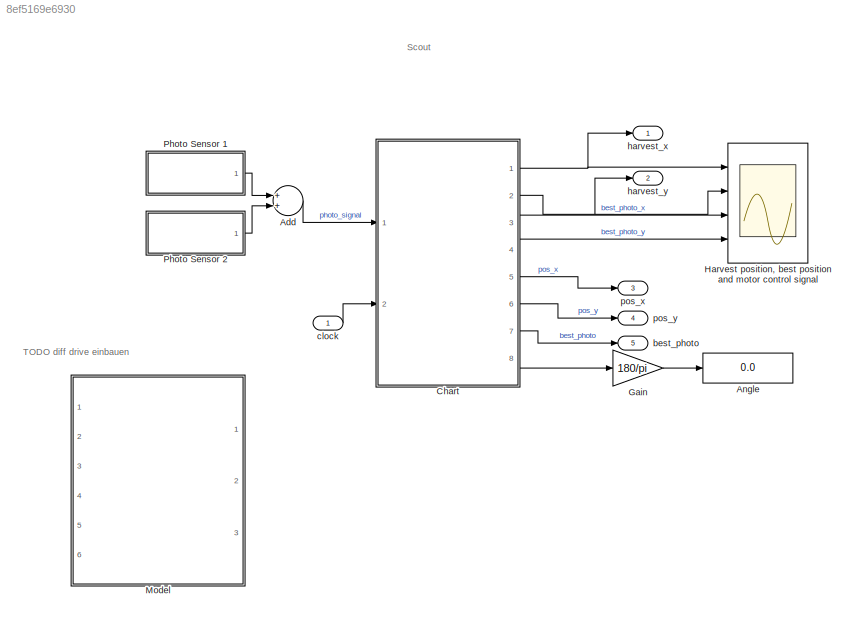
MODEL slx_8ef5169e6930
KIND model
CONFIG AbsTol = auto
CONFIG EnableMultiTasking = off
CONFIG FixedStep = 0.01
CONFIG MaxStep = auto
CONFIG MinStep = auto
CONFIG RelTol = 1e-3
CONFIG SampleTimeConstraint = Unconstrained
CONFIG Solver = VariableStepAuto
CONFIG SolverName = VariableStepAuto
CONFIG StartTime = 0.0
CONFIG StopTime = 20
BLOCK [Sum] Add
  InputSameDT = off
  OutDataTypeStr = Inherit: Inherit via internal rule
  Ports = [2, 1]
  SaturateOnIntegerOverflow = off
BLOCK [Display] Angle
  Decimation = 1
  Ports = [1]
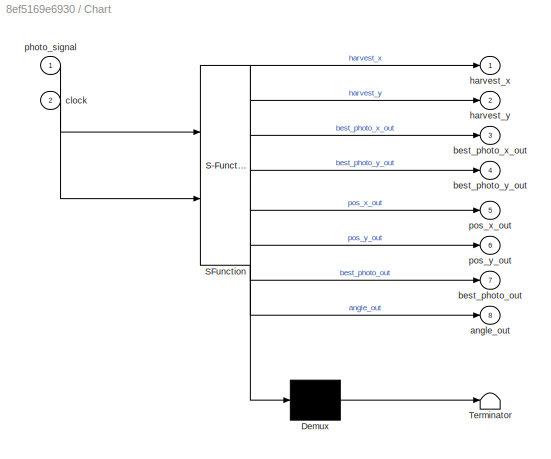
BLOCK [SubSystem] Chart
  ErrorFcn = Stateflow.Translate.translate
  PermitHierarchicalResolution = ExplicitOnly
  Ports = [2, 8]
  RequestExecContextInheritance = off
  SFBlockType = Chart
  TreatAsAtomicUnit = on
BLOCK [Demux] Chart/ Demux 
  Outputs = 1
  Ports = [1, 1]
BLOCK [S-Function] Chart/ SFunction 
  EnableBusSupport = on
  FunctionName = sf_sfun
  PortCounts = [2 9]
  Ports = [2, 9]
  SFcnIsStateOwnerBlock = off
  SFunctionDeploymentMode = off
  Tag = Stateflow S-Function scout 3
BLOCK [Terminator] Chart/ Terminator 
BLOCK [Outport] Chart/angle_out
  IconDisplay = Port number
  Port = 8
BLOCK [Outport] Chart/best_photo_out
  IconDisplay = Port number
  Port = 7
BLOCK [Outport] Chart/best_photo_x_out
  IconDisplay = Port number
  Port = 3
BLOCK [Outport] Chart/best_photo_y_out
  IconDisplay = Port number
  Port = 4
BLOCK [Inport] Chart/clock
  IconDisplay = Port number
  Port = 2
BLOCK [Outport] Chart/harvest_x
  IconDisplay = Port number
BLOCK [Outport] Chart/harvest_y
  IconDisplay = Port number
  Port = 2
BLOCK [Inport] Chart/photo_signal
  IconDisplay = Port number
BLOCK [Outport] Chart/pos_x_out
  IconDisplay = Port number
  Port = 5
BLOCK [Outport] Chart/pos_y_out
  IconDisplay = Port number
  Port = 6
BLOCK [Gain] Gain
  Gain = 180/pi
  OutDataTypeStr = Inherit: Inherit via internal rule
  ParamDataTypeStr = Inherit: Inherit via internal rule
  SaturateOnIntegerOverflow = off
BLOCK [Scope] Harvest position, best position and motor control signal
  Floating = off
  NumInputPorts = 4
  Ports = [4]
  ScopeSpecificationString = Simulink.scopes.TimeScopeBlockCfg('CurrentConfiguration', extmgr.ConfigurationSet(extmgr.Configuration('Core','General UI',true),extmgr.Configuration('Core','Source UI',true),extmgr.Configuration('Sources','WiredSimulink',true),extmgr.Configuration('Visuals','Time Domain',true,'SerializedDisplays',{struct('MinYLimReal','-3.125','MaxYLimReal','18.125','YLabelReal','','MinYLimMag','0.00000','MaxYLim...<+1392ch>
BLOCK [ModelReference] Model
  ModelNameDialog = differential_drive.slx
  ModelReferenceVersion = 1.286
  Ports = [6, 3]
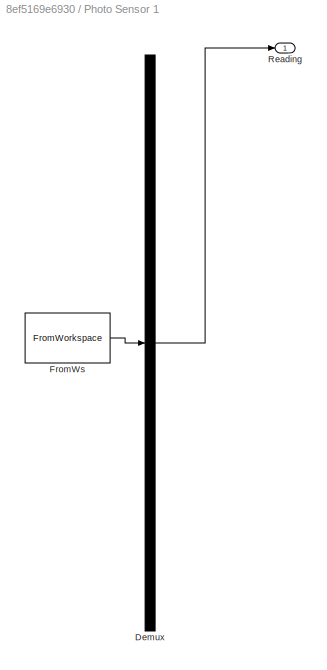
BLOCK [SubSystem] Photo Sensor 1
  ClipboardFcn = sigbuilder_block('clipboard');
  CloseFcn = sigbuilder_block('close');
  ContinueFcn = sigbuilder_block('continue');
  CopyFcn = sigbuilder_block('copy');
  DeleteFcn = sigbuilder_block('delete');
  LoadFcn = sigbuilder_block('load');
  MaskHideContents = on
  ModelCloseFcn = sigbuilder_block('modelClose');
  NameChangeFcn = sigbuilder_block('namechange');
  OpenFcn = sigbuilder_block('open',[5.4 30 1141.2 522.6 ]);
  PauseFcn = sigbuilder_block('pause');
  Ports = [0, 1]
  PreSaveFcn = sigbuilder_block('preSave');
  RequestExecContextInheritance = off
  StartFcn = sigbuilder_block('start');
  StopFcn = sigbuilder_block('stop');
  Tag = STV Subsys
BLOCK [Demux] Photo Sensor 1/Demux
  Outputs = 1
  Ports = [1, 1]
  Tag = STV Demux
BLOCK [FromWorkspace] Photo Sensor 1/FromWs
  SampleTime = 0
  Tag = STV FromWs
  VariableName = tuvar
  ZeroCross = on
BLOCK [Outport] Photo Sensor 1/Reading
  IconDisplay = Port number
  Tag = STV Outport
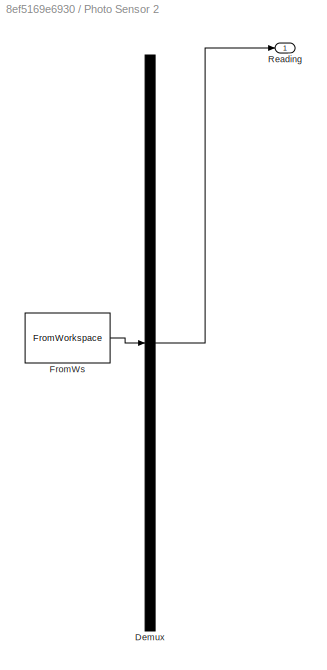
BLOCK [SubSystem] Photo Sensor 2
  ClipboardFcn = sigbuilder_block('clipboard');
  CloseFcn = sigbuilder_block('close');
  ContinueFcn = sigbuilder_block('continue');
  CopyFcn = sigbuilder_block('copy');
  DeleteFcn = sigbuilder_block('delete');
  LoadFcn = sigbuilder_block('load');
  MaskHideContents = on
  ModelCloseFcn = sigbuilder_block('modelClose');
  NameChangeFcn = sigbuilder_block('namechange');
  OpenFcn = sigbuilder_block('open',[5.4 30 1141.2 522.6 ]);
  PauseFcn = sigbuilder_block('pause');
  Ports = [0, 1]
  PreSaveFcn = sigbuilder_block('preSave');
  RequestExecContextInheritance = off
  StartFcn = sigbuilder_block('start');
  StopFcn = sigbuilder_block('stop');
  Tag = STV Subsys
BLOCK [Demux] Photo Sensor 2/Demux
  Outputs = 1
  Ports = [1, 1]
  Tag = STV Demux
BLOCK [FromWorkspace] Photo Sensor 2/FromWs
  SampleTime = 0
  Tag = STV FromWs
  VariableName = tuvar
  ZeroCross = on
BLOCK [Outport] Photo Sensor 2/Reading
  IconDisplay = Port number
  Tag = STV Outport
BLOCK [Outport] best_photo
  IconDisplay = Port number
  OutDataTypeStr = double
  Port = 5
  PortDimensions = 1
  SampleTime = 0
  SamplingMode = Sample based
  SignalType = real
BLOCK [Inport] clock
  IconDisplay = Port number
  OutDataTypeStr = double
  PortDimensions = 1
  SampleTime = 0
  SamplingMode = Sample based
  SignalType = real
BLOCK [Outport] harvest_x
  IconDisplay = Port number
  OutDataTypeStr = double
  PortDimensions = 1
  SampleTime = 0
  SamplingMode = Sample based
  SignalType = real
BLOCK [Outport] harvest_y
  IconDisplay = Port number
  OutDataTypeStr = double
  Port = 2
  PortDimensions = 1
  SampleTime = 0
  SamplingMode = Sample based
  SignalType = real
BLOCK [Outport] pos_x
  IconDisplay = Port number
  OutDataTypeStr = double
  Port = 3
  PortDimensions = 1
  SampleTime = 0
  SamplingMode = Sample based
  SignalType = real
BLOCK [Outport] pos_y
  IconDisplay = Port number
  OutDataTypeStr = double
  Port = 4
  PortDimensions = 1
  SampleTime = 0
  SamplingMode = Sample based
  SignalType = real
ANNOTATION (root): TODO diff drive einbauen
ANNOTATION (root): Scout
LINE Add:1 -> Chart:1
NET Chart:1 -> Harvest position, best position and motor control signal:1, harvest_x:1
NET Chart:2 -> Harvest position, best position and motor control signal:2, harvest_y:1
LINE Chart:3 -> Harvest position, best position and motor control signal:3
LINE Chart:4 -> Harvest position, best position and motor control signal:4
LINE Chart:5 -> pos_x:1
LINE Chart:6 -> pos_y:1
LINE Chart:7 -> best_photo:1
LINE Chart:8 -> Gain:1
LINE Gain:1 -> Angle:1
LINE Photo Sensor 1:1 -> Add:1
LINE Photo Sensor 2:1 -> Add:2
LINE clock:1 -> Chart:2
note: NET lines group one-source signal fan-out (src -> all destinations, sorted); 1:1 wires keep LINE
CHART Chart states=11 transitions=12
  STATE_LABEL 'Drive'
  STATE_LABEL 'Move\ndu:\npos_x_dot = (r / 2) * (ul + ur) * cos(angle);\npos_y_dot = (r / 2) * (ul + ur) * sin(angle);\nangle_dot = (r / L) * (ur - ul);\npos_x_out = pos_x;\npos_y_out = pos_y;\nangle_out = angle;\n'
  STATE_LABEL '<!DOCTYPE HTML PUBLIC "-//W3C//DTD HTML 4.0//EN" "http://www.w3.org/TR/REC-html40/strict.dtd">\n<html><head><meta name="qrichtext" content="1" /><style type="text/css">\np, li { white-space: pre-wrap; }\n</style></head><body style=" font-family:\'Helvetica\'; font-size:12px; font-weight:400; font-style:normal;">\n<p style=" margin-top:0px; margin-bottom:0px; margin-left:0px; margin-right:0px; -qt-block-...<+208ch>'
  STATE_LABEL '{\npos_x = 0;\npos_y = 0;\nul = 1;\nur = 1;\nangle = 0;\nturn = 0;\n}'
  STATE_LABEL '[false]\n{ul = 1; ur = -1; turn == 2;}'
  STATE_LABEL '[angle * 180/pi == 0 && turn == 0]\n{ul = -1; ur = 1; turn = 1;}'
  STATE_LABEL '[angle * 180/pi  >= 25 && turn > 0]\n{ul = 1; ur = 1; turn = 0}'
  STATE_LABEL 'Move\ndu:\npos_x_dot = (r / 2) * (ul + ur) * cos(angle);\npos_y_dot = (r / 2) * (ul + ur) * sin(angle);\nangle_dot = (r / L) * (ur - ul);\npos_x_out = pos_x;\npos_y_out = pos_y;\nangle_out = angle;\n'
  STATE_LABEL '<!DOCTYPE HTML PUBLIC "-//W3C//DTD HTML 4.0//EN" "http://www.w3.org/TR/REC-html40/strict.dtd">\n<html><head><meta name="qrichtext" content="1" /><style type="text/css">\np, li { white-space: pre-wrap; }\n</style></head><body style=" font-family:\'Helvetica\'; font-size:12px; font-weight:400; font-style:normal;">\n<p style=" margin-top:0px; margin-bottom:0px; margin-left:0px; margin-right:0px; -qt-block-...<+208ch>'
  STATE_LABEL 'Sense'
  STATE_LABEL 'Dark\n'
  STATE_LABEL 'Light\nen, du:\nharvest_x = pos_x;\nharvest_y = pos_y;'
  STATE_LABEL '<!DOCTYPE HTML PUBLIC "-//W3C//DTD HTML 4.0//EN" "http://www.w3.org/TR/REC-html40/strict.dtd">\n<html><head><meta name="qrichtext" content="1" /><style type="text/css">\np, li { white-space: pre-wrap; }\n</style></head><body style=" font-family:\'Helvetica\'; font-size:12px; font-weight:400; font-style:normal;">\n<p style=" margin-top:0px; margin-bottom:0px; margin-left:0px; margin-right:0px; -qt-block-...<+130ch>'
  STATE_LABEL '{\nbest_photo = -1;\nbest_photo_x = -1;\nbest_photo_y = -1;\n}'
  STATE_LABEL '[photo_signal > 200]'
  STATE_LABEL '[photo_signal > best_photo]\n{best_photo = photo_signal;\nbest_photo_x = pos_x;\nbest_photo_y = pos_y;}'
  STATE_LABEL '[photo_signal <= 200]'
  STATE_LABEL '[photo_signal > best_photo]\n{best_photo = photo_signal;\nbest_photo_x = pos_x;\nbest_photo_y = pos_y;}'
  STATE_LABEL 'Dark\n'
  STATE_LABEL 'Light\nen, du:\nharvest_x = pos_x;\nharvest_y = pos_y;'
  STATE_LABEL '<!DOCTYPE HTML PUBLIC "-//W3C//DTD HTML 4.0//EN" "http://www.w3.org/TR/REC-html40/strict.dtd">\n<html><head><meta name="qrichtext" content="1" /><style type="text/css">\np, li { white-space: pre-wrap; }\n</style></head><body style=" font-family:\'Helvetica\'; font-size:12px; font-weight:400; font-style:normal;">\n<p style=" margin-top:0px; margin-bottom:0px; margin-left:0px; margin-right:0px; -qt-block-...<+130ch>'
  STATE_LABEL 'Clock\n'
  STATE_LABEL 'Seeking\nen:\ncycle_start = clock;\n'
  STATE_LABEL 'Report\nen:\nbest_photo_out = best_photo;\nbest_photo_x_out = best_photo_x;\nbest_photo_y_out = best_photo_y;'
  STATE_LABEL '<!DOCTYPE HTML PUBLIC "-//W3C//DTD HTML 4.0//EN" "http://www.w3.org/TR/REC-html40/strict.dtd">\n<html><head><meta name="qrichtext" content="1" /><style type="text/css">\np, li { white-space: pre-wrap; }\n</style></head><body style=" font-family:\'Helvetica\'; font-size:12px; font-weight:400; font-style:normal;">\n<p style=" margin-top:0px; margin-bottom:0px; margin-left:0px; margin-right:0px; -qt-block-...<+343ch>'
  STATE_LABEL '[clock - cycle_start >= 2]'
  STATE_LABEL 'Seeking\nen:\ncycle_start = clock;\n'
  STATE_LABEL 'Report\nen:\nbest_photo_out = best_photo;\nbest_photo_x_out = best_photo_x;\nbest_photo_y_out = best_photo_y;'
  STATE_LABEL '<!DOCTYPE HTML PUBLIC "-//W3C//DTD HTML 4.0//EN" "http://www.w3.org/TR/REC-html40/strict.dtd">\n<html><head><meta name="qrichtext" content="1" /><style type="text/css">\np, li { white-space: pre-wrap; }\n</style></head><body style=" font-family:\'Helvetica\'; font-size:12px; font-weight:400; font-style:normal;">\n<p style=" margin-top:0px; margin-bottom:0px; margin-left:0px; margin-right:0px; -qt-block-...<+343ch>'
